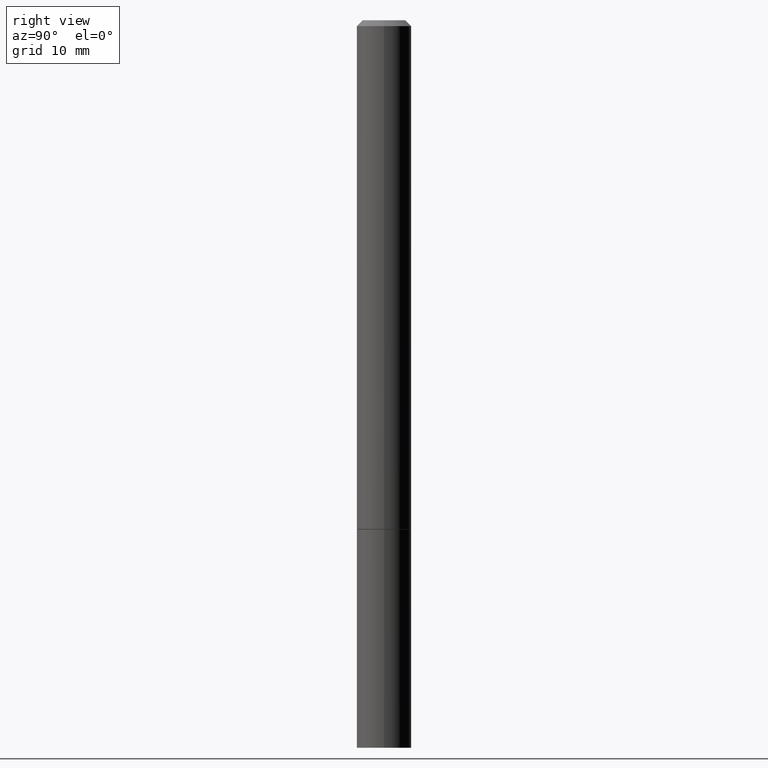
[diagram: clean part render]
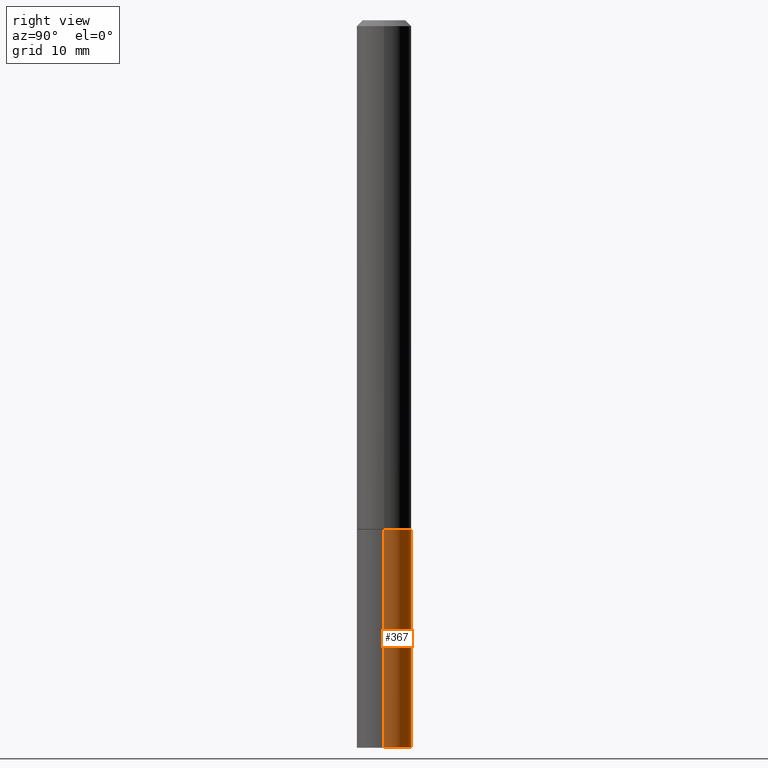
[diagram: same view with one face highlighted and labeled with its STEP entity id]
A machine part, right view. The second image highlights one B-rep face of the part: STEP entity #367.
In plain terms, the highlighted cylindrical surface (edge-blend (fillet) strip) has radius 2.3813 mm, axis along (-0, 0, 1).
Its self-contained STEP definition (entity closure, byte-faithful):
#1 = EDGE_LOOP ( 'NONE', ( #213, #388, #95, #124 ) ) ;
#9 = DIRECTION ( 'NONE',  ( -2.445468806185136597E-29, 3.491481338843145583E-15, 1.000000000000000000 ) ) ;
#18 = EDGE_CURVE ( 'NONE', #21, #268, #172, .T. ) ;
#20 = CARTESIAN_POINT ( 'NONE',  ( 0.000000000000000000, 0.000000000000000000, 0.000000000000000000 ) ) ;
#21 = VERTEX_POINT ( 'NONE', #247 ) ;
#45 = EDGE_CURVE ( 'NONE', #390, #141, #133, .T. ) ;
#62 = CARTESIAN_POINT ( 'NONE',  ( 4.279570410823989044E-29, -6.110092342975505460E-15, -1.750000000000000222 ) ) ;
#72 = CARTESIAN_POINT ( 'NONE',  ( -0.09375000000000001388, -6.753264030266591277E-15, -1.750000000000000222 ) ) ;
#95 = ORIENTED_EDGE ( 'NONE', *, *, #45, .F. ) ;
#96 = DIRECTION ( 'NONE',  ( -2.445468806185136597E-29, 3.491481338843145583E-15, 1.000000000000000000 ) ) ;
#98 = CARTESIAN_POINT ( 'NONE',  ( 6.113672015462842613E-29, -8.728703347107864943E-15, -2.500000000000000000 ) ) ;
#102 = AXIS2_PLACEMENT_3D ( 'NONE', #98, #9, #130 ) ;
#106 = CARTESIAN_POINT ( 'NONE',  ( -0.09374999999999984734, -8.074050596074776650E-15, -2.500000000000000000 ) ) ;
#110 = CARTESIAN_POINT ( 'NONE',  ( 0.09375000000000001388, -6.546527510330875041E-16, 4.571415727308690506E-30 ) ) ;
#117 = FACE_OUTER_BOUND ( 'NONE', #1, .T. ) ;
#124 = ORIENTED_EDGE ( 'NONE', *, *, #344, .F. ) ;
#128 = CARTESIAN_POINT ( 'NONE',  ( -0.09375000000000001388, 6.661338147750940229E-16, -4.611501647113973995E-30 ) ) ;
#130 = DIRECTION ( 'NONE',  ( 1.000000000000000000, -6.982962677686272233E-15, 0.000000000000000000 ) ) ;
#131 = DIRECTION ( 'NONE',  ( -2.445468806185136877E-29, 3.491481338843145188E-15, 1.000000000000000000 ) ) ;
#133 = CIRCLE ( 'NONE', #330, 0.09375000000000001388 ) ;
#138 = DIRECTION ( 'NONE',  ( -2.445468806185136877E-29, 3.491481338843145188E-15, 1.000000000000000000 ) ) ;
#141 = VERTEX_POINT ( 'NONE', #72 ) ;
#150 = EDGE_CURVE ( 'NONE', #268, #141, #194, .T. ) ;
#167 = VECTOR ( 'NONE', #138, 39.37007874015748143 ) ;
#172 = CIRCLE ( 'NONE', #102, 0.09375000000000001388 ) ;
#176 = CARTESIAN_POINT ( 'NONE',  ( 0.09375000000000001388, -6.764745094008592175E-15, -1.750000000000000222 ) ) ;
#186 = DIRECTION ( 'NONE',  ( 1.000000000000000000, -6.982962677686261189E-15, 0.000000000000000000 ) ) ;
#194 = LINE ( 'NONE', #128, #373 ) ;
#213 = ORIENTED_EDGE ( 'NONE', *, *, #18, .T. ) ;
#246 = AXIS2_PLACEMENT_3D ( 'NONE', #20, #362, #298 ) ;
#247 = CARTESIAN_POINT ( 'NONE',  ( 0.09374999999999984734, -9.371875034398942871E-15, -2.500000000000000000 ) ) ;
#268 = VERTEX_POINT ( 'NONE', #106 ) ;
#282 = LINE ( 'NONE', #110, #167 ) ;
#298 = DIRECTION ( 'NONE',  ( 1.000000000000000000, -6.982962677686265922E-15, 4.876176775795935793E-29 ) ) ;
#330 = AXIS2_PLACEMENT_3D ( 'NONE', #62, #96, #186 ) ;
#344 = EDGE_CURVE ( 'NONE', #21, #390, #282, .T. ) ;
#362 = DIRECTION ( 'NONE',  ( -2.445468806185136597E-29, 3.491481338843145583E-15, 1.000000000000000000 ) ) ;
#367 = ADVANCED_FACE ( 'NONE', ( #117 ), #386, .T. ) ;
#373 = VECTOR ( 'NONE', #131, 39.37007874015748143 ) ;
#386 = CYLINDRICAL_SURFACE ( 'NONE', #246, 0.09375000000000001388 ) ;
#388 = ORIENTED_EDGE ( 'NONE', *, *, #150, .T. ) ;
#390 = VERTEX_POINT ( 'NONE', #176 ) ;